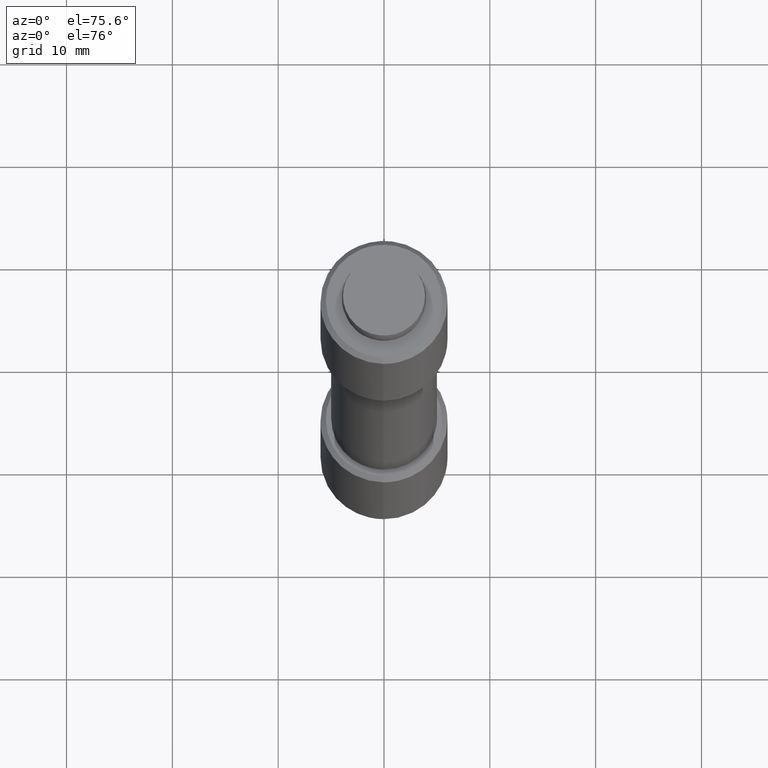
[diagram: clean part render]
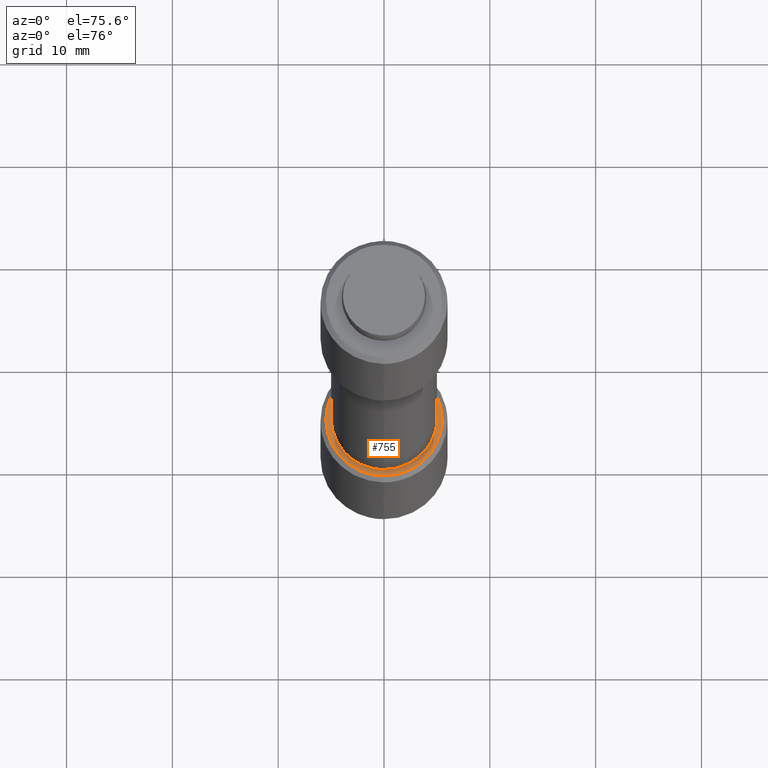
[diagram: same view with one face highlighted and labeled with its STEP entity id]
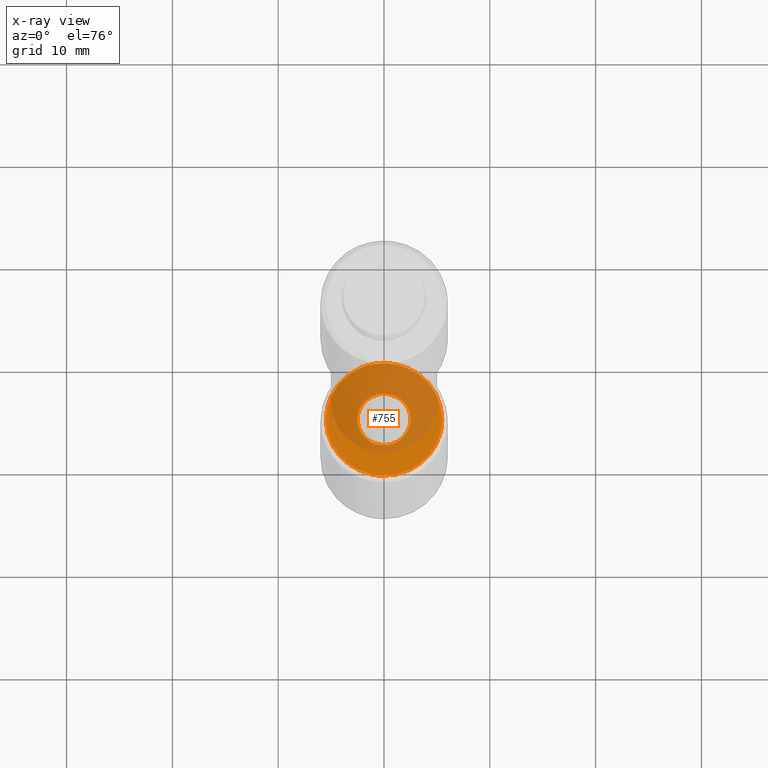
[diagram: x-ray of the same camera — body ghosted, the highlighted face saturated]
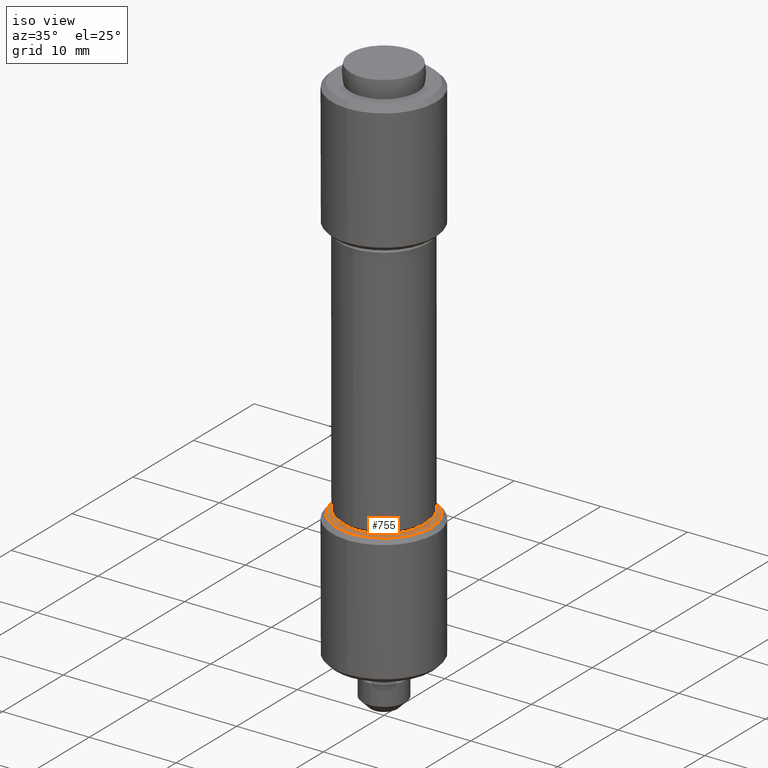
[diagram: same view with one face highlighted and labeled with its STEP entity id]
A machine part, auxiliary view. The second image highlights one B-rep face of the part: STEP entity #755.
The next image is the same camera in x-ray: the body ghosted, the highlighted face saturated — about 64% of this face is hidden behind the body in this view.
A second angle (iso view) of the same face is appended — the face is thin or edge-on in the first view.
In plain terms, the highlighted face is a freeform B-spline surface patch.
Its self-contained STEP definition (entity closure, byte-faithful):
#85=CARTESIAN_POINT('',(-2.223184875934841,5.030650952651774,19.999999999999879));
#86=VERTEX_POINT('',#85);
#92=CARTESIAN_POINT('',(5.500000000000000,0.0,20.0));
#93=VERTEX_POINT('',#92);
#94=CARTESIAN_POINT('',(5.500000000000000,0.0,20.0));
#95=CARTESIAN_POINT('',(5.500000000000001,5.500000000000001,19.999999999999996));
#96=CARTESIAN_POINT('',(0.0,5.500000000000000,20.0));
#97=CARTESIAN_POINT('',(-1.161135894887036,5.499999999999999,20.000000000000004));
#98=CARTESIAN_POINT('',(-2.223184875934841,5.030650952651774,19.999999999999883));
#106=(BOUNDED_CURVE()B_SPLINE_CURVE(2,(#94,#95,#96,#97,#98),.UNSPECIFIED.,.F.,.U.)B_SPLINE_CURVE_WITH_KNOTS((3,2,3),(0.0,0.250000000000000,0.318638421540158),.UNSPECIFIED.)CURVE()GEOMETRIC_REPRESENTATION_ITEM()RATIONAL_B_SPLINE_CURVE((1.0,0.707106781186548,1.0,0.919585087123314,0.883326595751789))REPRESENTATION_ITEM(''));
#107=EDGE_CURVE('',#93,#86,#106,.T.);
#109=CARTESIAN_POINT('',(-0.047995945447204,-5.499790576879276,19.999999999971891));
#110=VERTEX_POINT('',#109);
#111=CARTESIAN_POINT('',(-0.047995945447204,-5.499790576879276,19.999999999971891));
#112=CARTESIAN_POINT('',(-0.023998429719772,-5.500000000000001,20.000000000000004));
#113=CARTESIAN_POINT('',(0.0,-5.500000000000000,20.0));
#114=CARTESIAN_POINT('',(5.500000000000001,-5.500000000000001,19.999999999999996));
#115=CARTESIAN_POINT('',(5.500000000000000,0.0,20.0));
#123=(BOUNDED_CURVE()B_SPLINE_CURVE(2,(#111,#112,#113,#114,#115),.UNSPECIFIED.,.F.,.U.)B_SPLINE_CURVE_WITH_KNOTS((3,2,3),(0.748460105651824,0.750000000000000,1.0),.UNSPECIFIED.)CURVE()GEOMETRIC_REPRESENTATION_ITEM()RATIONAL_B_SPLINE_CURVE((0.996414028069883,0.998195901550920,1.0,0.707106781186548,1.0))REPRESENTATION_ITEM(''));
#124=EDGE_CURVE('',#110,#93,#123,.T.);
#213=CARTESIAN_POINT('',(-5.500000000000000,0.0,20.0));
#214=VERTEX_POINT('',#213);
#215=CARTESIAN_POINT('',(-5.500000000000000,0.0,20.0));
#216=CARTESIAN_POINT('',(-5.500000000000001,-5.452211657864133,20.000000000000007));
#217=CARTESIAN_POINT('',(-0.047995945447204,-5.499790576879276,19.999999999971894));
#225=(BOUNDED_CURVE()B_SPLINE_CURVE(2,(#215,#216,#217),.UNSPECIFIED.,.F.,.U.)B_SPLINE_CURVE_WITH_KNOTS((3,3),(0.500000000000000,0.748460105651824),.UNSPECIFIED.)CURVE()GEOMETRIC_REPRESENTATION_ITEM()RATIONAL_B_SPLINE_CURVE((1.0,0.708910879635627,0.996414028069884))REPRESENTATION_ITEM(''));
#226=EDGE_CURVE('',#214,#110,#225,.T.);
#228=CARTESIAN_POINT('',(-2.223184875934841,5.030650952651774,19.999999999999879));
#229=CARTESIAN_POINT('',(-5.500000000000000,3.582535014251653,20.000000000000007));
#230=CARTESIAN_POINT('',(-5.500000000000000,0.0,20.0));
#238=(BOUNDED_CURVE()B_SPLINE_CURVE(2,(#228,#229,#230),.UNSPECIFIED.,.F.,.U.)B_SPLINE_CURVE_WITH_KNOTS((3,3),(0.318638421540158,0.500000000000000),.UNSPECIFIED.)CURVE()GEOMETRIC_REPRESENTATION_ITEM()RATIONAL_B_SPLINE_CURVE((0.883326595751789,0.787521694063233,1.0))REPRESENTATION_ITEM(''));
#239=EDGE_CURVE('',#86,#214,#238,.T.);
#590=CARTESIAN_POINT('',(-0.152621348974491,2.495336996046266,20.0));
#591=VERTEX_POINT('',#590);
#597=CARTESIAN_POINT('',(-2.500000000000000,0.0,20.0));
#598=VERTEX_POINT('',#597);
#599=CARTESIAN_POINT('',(-2.500000000000000,0.0,20.0));
#600=CARTESIAN_POINT('',(-2.500000000000000,2.351765167004858,19.999999999999993));
#601=CARTESIAN_POINT('',(-0.152621348974491,2.495336996046266,20.0));
#609=(BOUNDED_CURVE()B_SPLINE_CURVE(2,(#599,#600,#601),.UNSPECIFIED.,.F.,.U.)B_SPLINE_CURVE_WITH_KNOTS((3,3),(0.500000000000000,0.739332962222973),.UNSPECIFIED.)CURVE()GEOMETRIC_REPRESENTATION_ITEM()RATIONAL_B_SPLINE_CURVE((1.0,0.719603993305420,0.976072041632492))REPRESENTATION_ITEM(''));
#610=EDGE_CURVE('',#598,#591,#609,.T.);
#612=CARTESIAN_POINT('',(0.295085586764168,-2.482523815894632,20.0));
#613=VERTEX_POINT('',#612);
#614=CARTESIAN_POINT('',(0.295085586764168,-2.482523815894632,20.000000000000004));
#615=CARTESIAN_POINT('',(0.148060299253339,-2.500000000000000,20.000000000000004));
#616=CARTESIAN_POINT('',(0.0,-2.500000000000000,20.0));
#617=CARTESIAN_POINT('',(-2.500000000000000,-2.500000000000000,19.999999999999996));
#618=CARTESIAN_POINT('',(-2.500000000000000,0.0,20.0));
#626=(BOUNDED_CURVE()B_SPLINE_CURVE(2,(#614,#615,#616,#617,#618),.UNSPECIFIED.,.F.,.U.)B_SPLINE_CURVE_WITH_KNOTS((3,2,3),(0.229562473498996,0.250000000000000,0.500000000000000),.UNSPECIFIED.)CURVE()GEOMETRIC_REPRESENTATION_ITEM()RATIONAL_B_SPLINE_CURVE((0.956026754155255,0.976055948314143,1.0,0.707106781186548,1.0))REPRESENTATION_ITEM(''));
#627=EDGE_CURVE('',#613,#598,#626,.T.);
#671=CARTESIAN_POINT('',(2.500000000000000,0.0,20.0));
#672=VERTEX_POINT('',#671);
#673=CARTESIAN_POINT('',(2.500000000000000,0.0,20.0));
#674=CARTESIAN_POINT('',(2.499999999999999,-2.220436314658154,19.999999999999993));
#675=CARTESIAN_POINT('',(0.295085586764168,-2.482523815894632,20.000000000000004));
#683=(BOUNDED_CURVE()B_SPLINE_CURVE(2,(#673,#674,#675),.UNSPECIFIED.,.F.,.U.)B_SPLINE_CURVE_WITH_KNOTS((3,3),(0.0,0.229562473498997),.UNSPECIFIED.)CURVE()GEOMETRIC_REPRESENTATION_ITEM()RATIONAL_B_SPLINE_CURVE((1.0,0.731050832872404,0.956026754155255))REPRESENTATION_ITEM(''));
#684=EDGE_CURVE('',#672,#613,#683,.T.);
#686=CARTESIAN_POINT('',(-0.152621348974491,2.495336996046266,20.0));
#687=CARTESIAN_POINT('',(-0.076381908384206,2.500000000000000,20.000000000000004));
#688=CARTESIAN_POINT('',(0.0,2.500000000000000,20.0));
#689=CARTESIAN_POINT('',(2.500000000000000,2.500000000000000,19.999999999999996));
#690=CARTESIAN_POINT('',(2.500000000000000,0.0,20.0));
#698=(BOUNDED_CURVE()B_SPLINE_CURVE(2,(#686,#687,#688,#689,#690),.UNSPECIFIED.,.F.,.U.)B_SPLINE_CURVE_WITH_KNOTS((3,2,3),(0.739332962222974,0.750000000000000,1.0),.UNSPECIFIED.)CURVE()GEOMETRIC_REPRESENTATION_ITEM()RATIONAL_B_SPLINE_CURVE((0.976072041632493,0.987502787881128,1.0,0.707106781186548,1.0))REPRESENTATION_ITEM(''));
#699=EDGE_CURVE('',#591,#672,#698,.T.);
#738=CARTESIAN_POINT('',(-6.049449978679865,-6.049181981059634,20.0));
#739=CARTESIAN_POINT('',(6.049450273722857,-6.049181981059635,20.0));
#740=CARTESIAN_POINT('',(-6.049449978679865,6.048425392481411,20.0));
#741=CARTESIAN_POINT('',(6.049450273722857,6.048425392481412,20.0));
#742=B_SPLINE_SURFACE_WITH_KNOTS('',1,1,((#738,#740),(#739,#741)),.UNSPECIFIED.,.F.,.F.,.U.,(2,2),(2,2),(0.0,12.098900252402720),(0.0,12.097607373541051),.UNSPECIFIED.);
#743=ORIENTED_EDGE('',*,*,#107,.T.);
#744=ORIENTED_EDGE('',*,*,#239,.T.);
#745=ORIENTED_EDGE('',*,*,#226,.T.);
#746=ORIENTED_EDGE('',*,*,#124,.T.);
#747=EDGE_LOOP('',(#743,#744,#745,#746));
#748=FACE_OUTER_BOUND('',#747,.T.);
#749=ORIENTED_EDGE('',*,*,#610,.T.);
#750=ORIENTED_EDGE('',*,*,#699,.T.);
#751=ORIENTED_EDGE('',*,*,#684,.T.);
#752=ORIENTED_EDGE('',*,*,#627,.T.);
#753=EDGE_LOOP('',(#749,#750,#751,#752));
#754=FACE_BOUND('',#753,.T.);
#755=ADVANCED_FACE('',(#748,#754),#742,.T.);